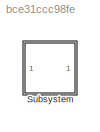
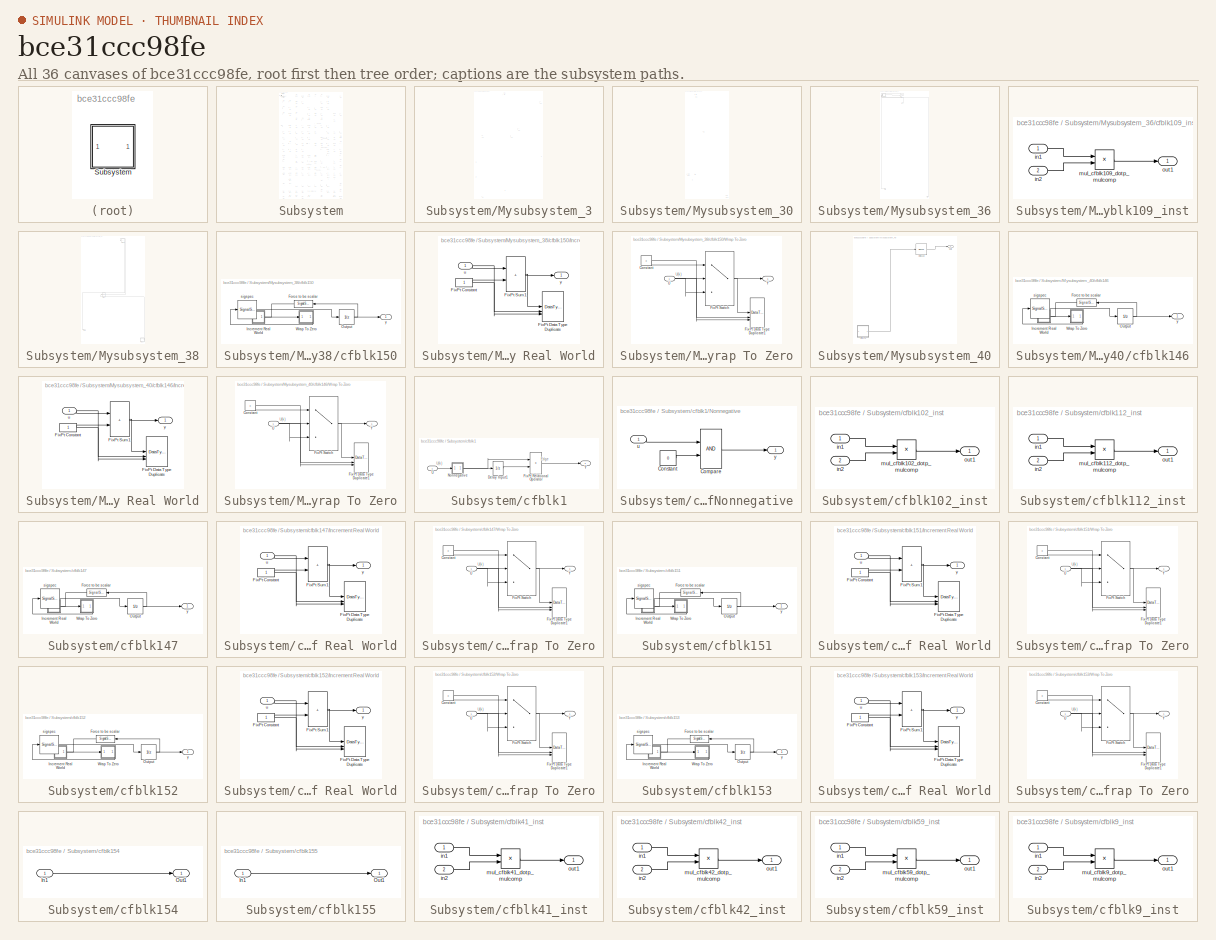
[diagram: thumbnail index - all 36 canvases of the model, root first then tree order]
MODEL slx_bce31ccc98fe
KIND model
CONFIG AbsTol = auto
CONFIG EnableMultiTasking = off
CONFIG FixedStep = auto
CONFIG MaxStep = auto
CONFIG MinStep = auto
CONFIG RelTol = 1e-3
CONFIG SampleTimeConstraint = Unconstrained
CONFIG SolverName = VariableStepAuto
CONFIG StartTime = 0.0
CONFIG StopTime = 10.0
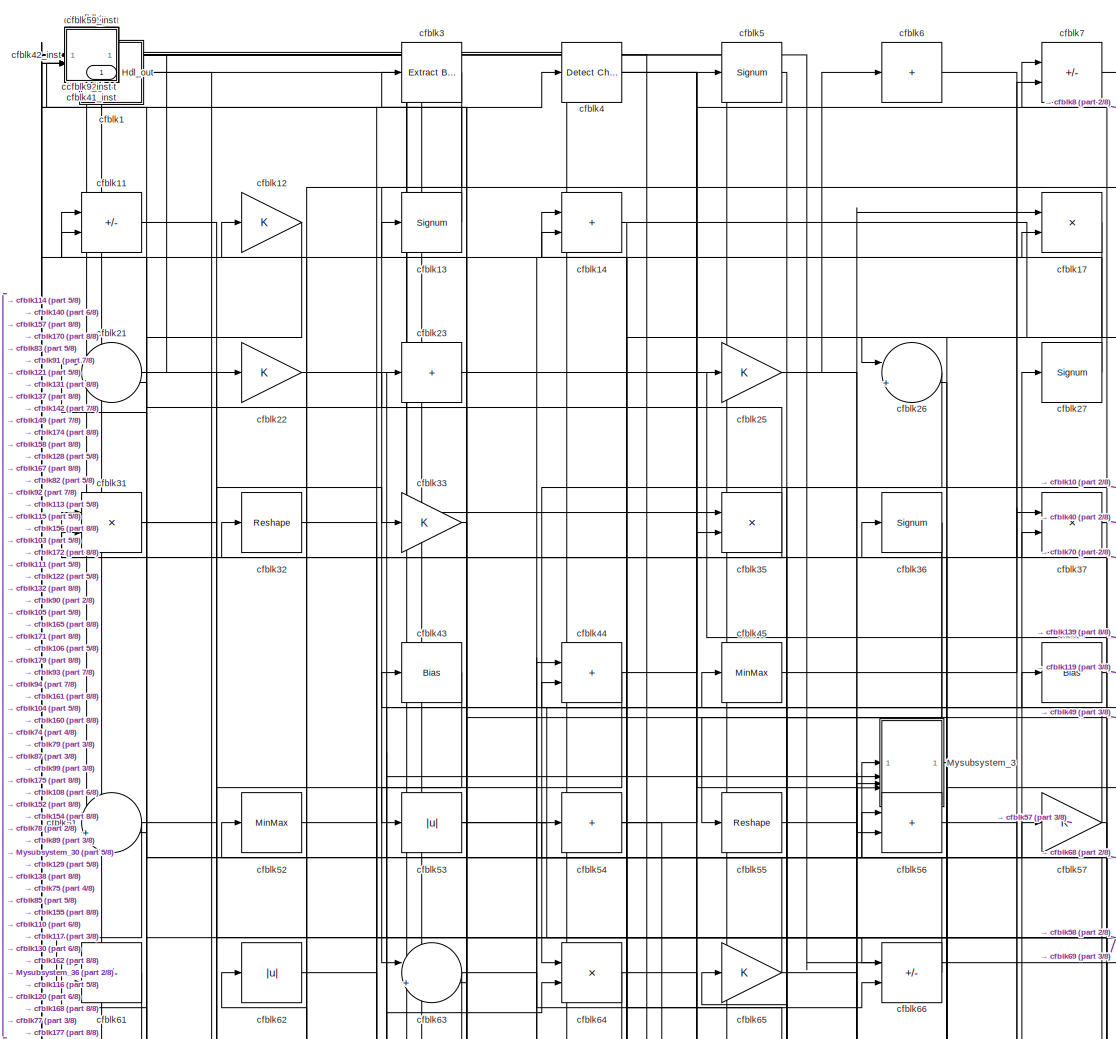
[diagram: Subsystem - part 1/8, top center region]
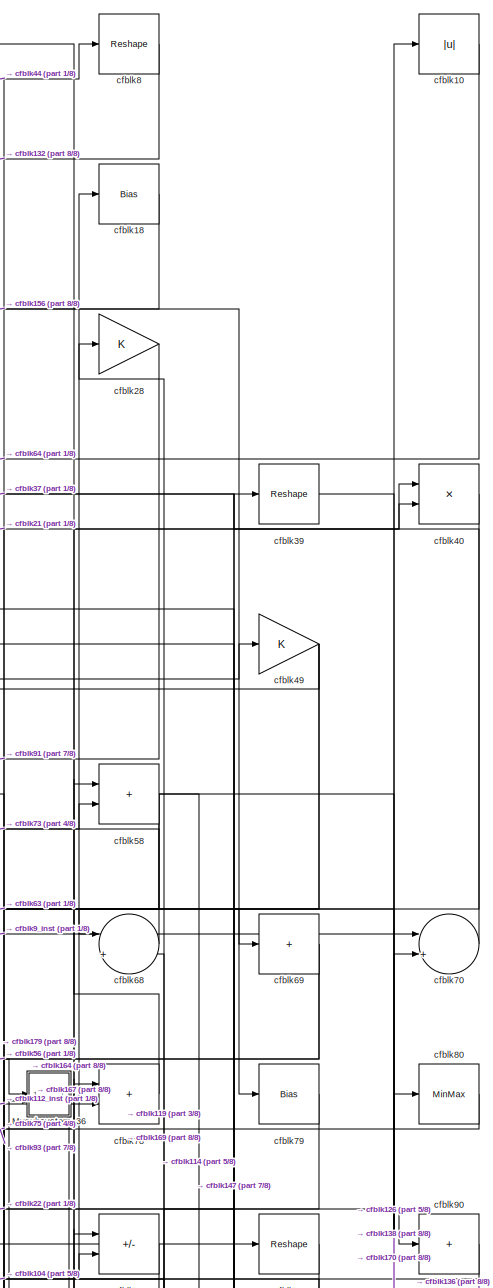
[diagram: Subsystem - part 2/8, top right region]
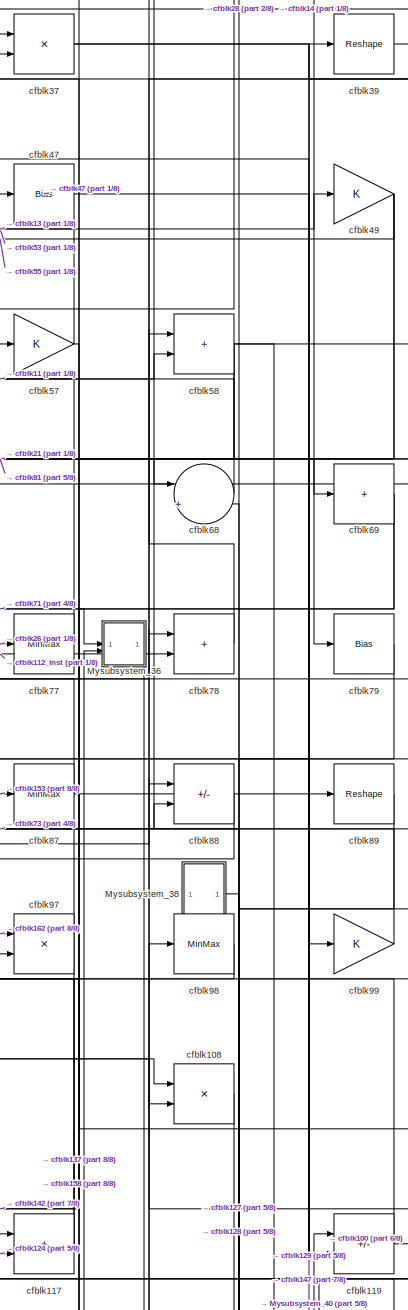
[diagram: Subsystem - part 3/8, middle right region]
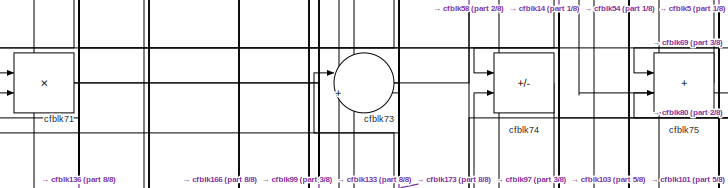
[diagram: Subsystem - part 4/8, middle left region]
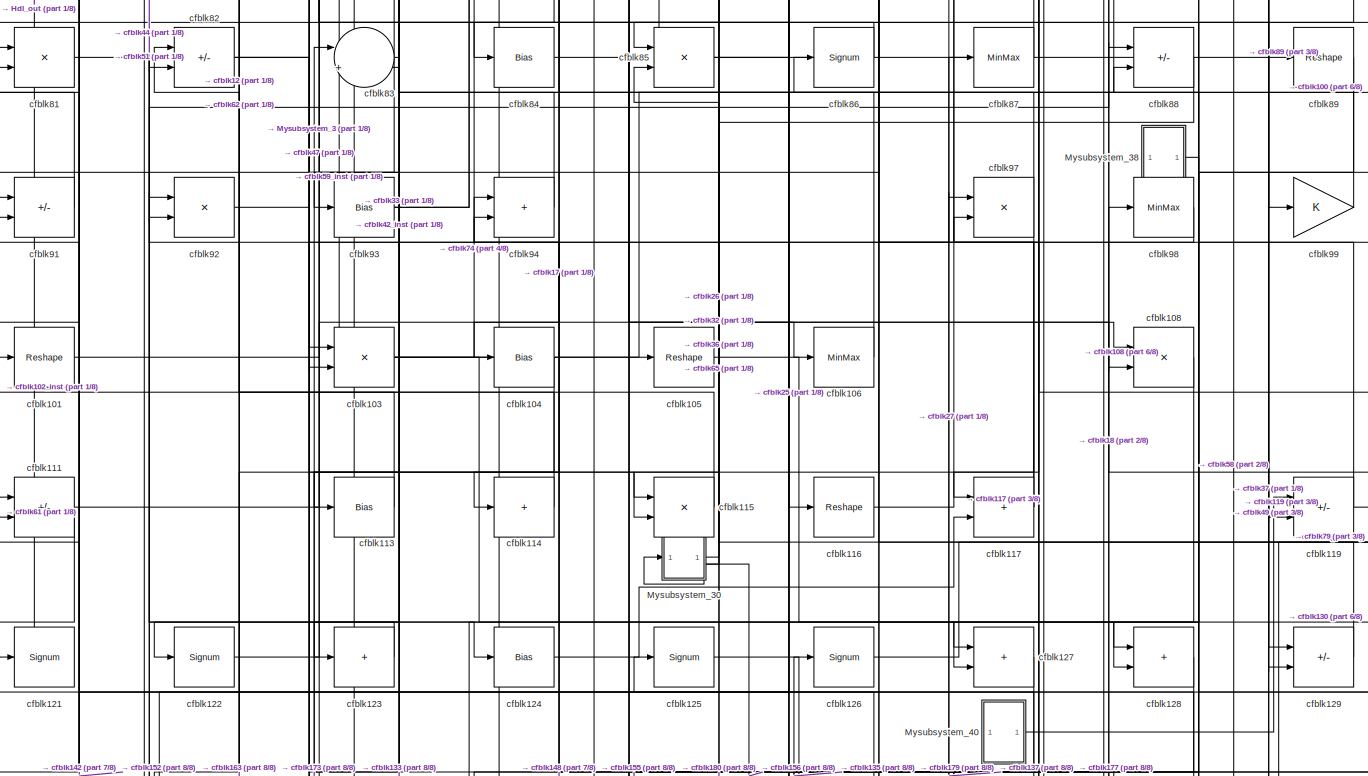
[diagram: Subsystem - part 5/8, full width, middle band]
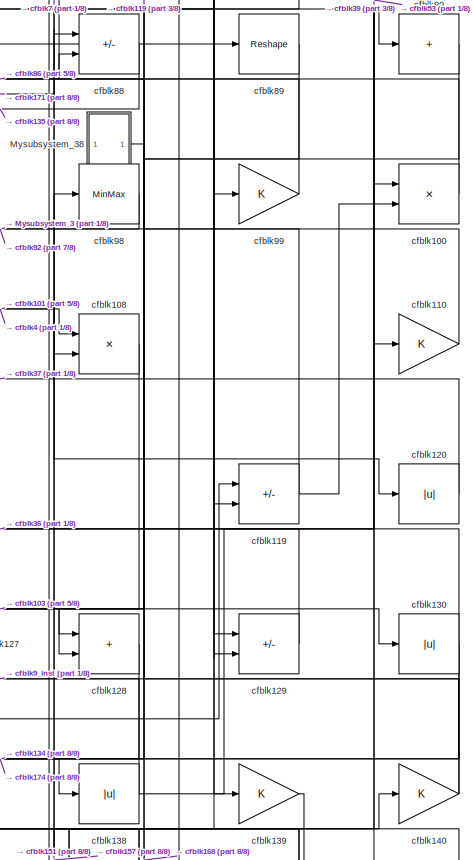
[diagram: Subsystem - part 6/8, middle right region]
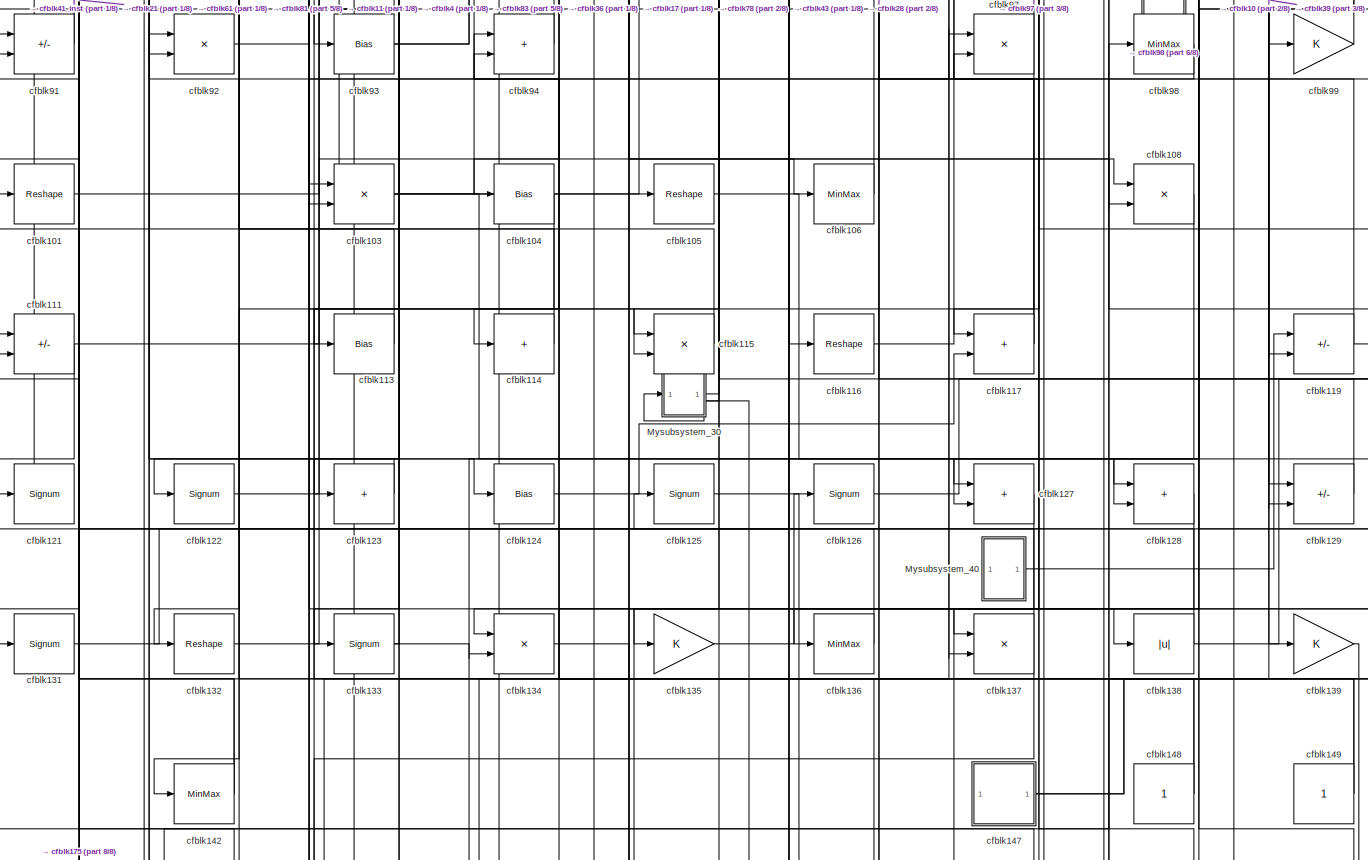
[diagram: Subsystem - part 7/8, full width, bottom band]
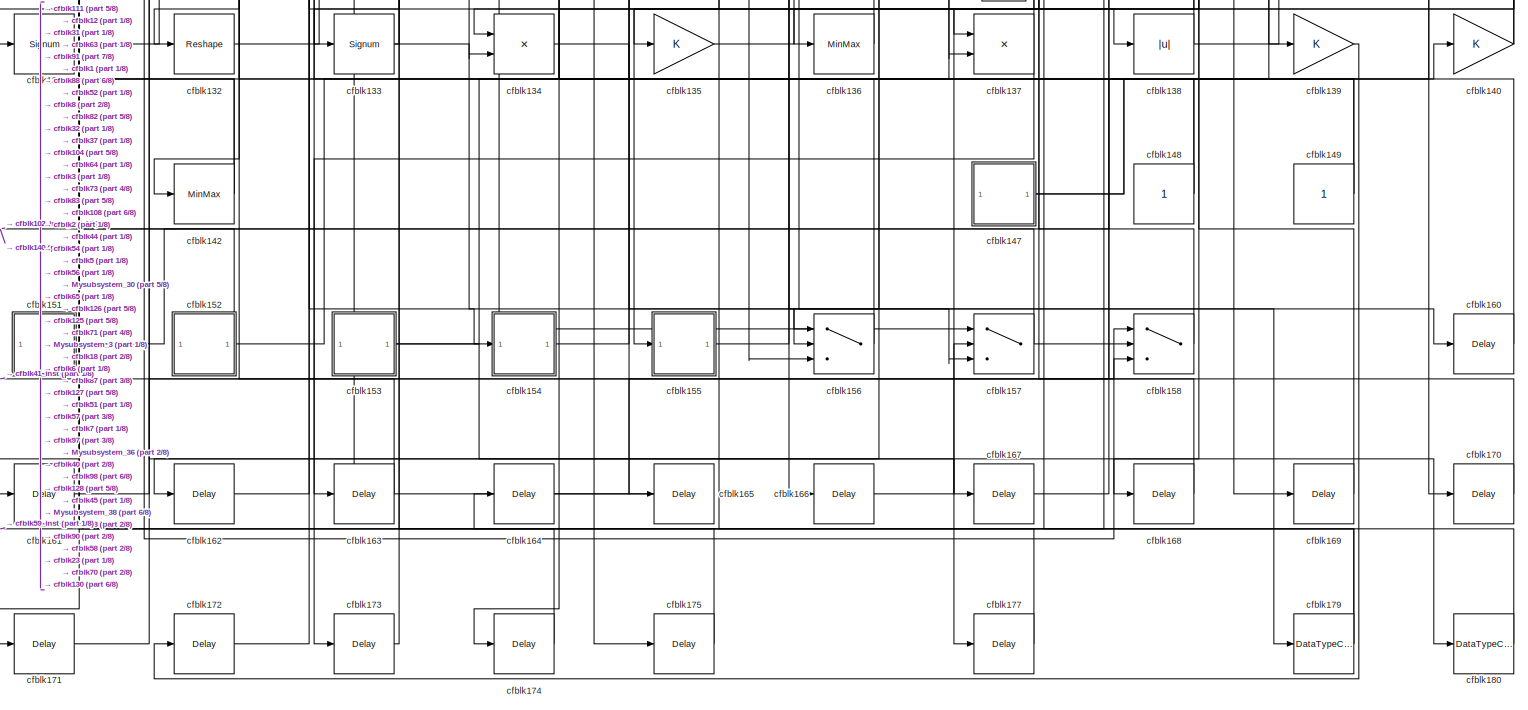
[diagram: Subsystem - part 8/8, full width, bottom band]
BLOCK [SubSystem] Subsystem
BLOCK [Outport] Subsystem/Hdl_out
  OutDataTypeStr = uint8
  SampleTime = 1
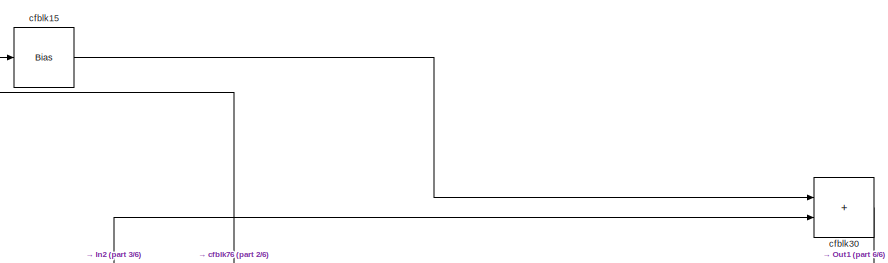
[diagram: Subsystem/Mysubsystem_3 - part 1/6, top right region]
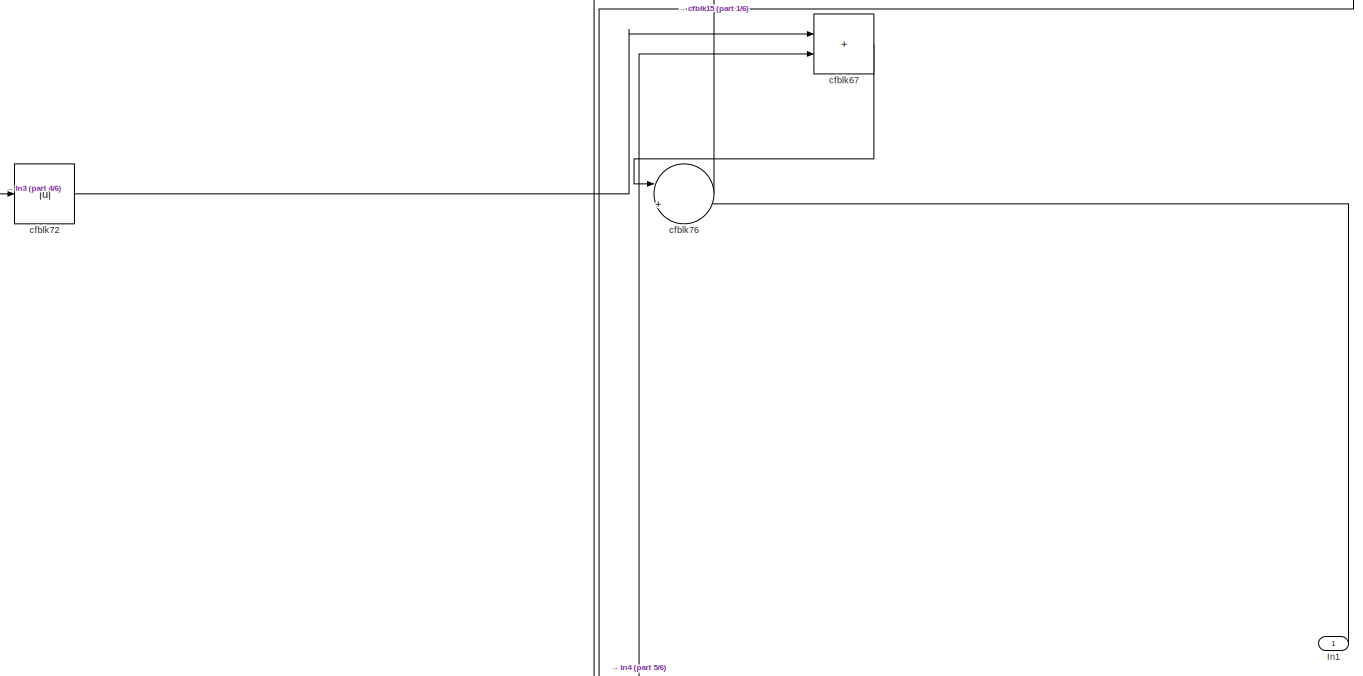
[diagram: Subsystem/Mysubsystem_3 - part 2/6, full width, middle band]
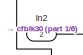
[diagram: Subsystem/Mysubsystem_3 - part 3/6, middle left region]
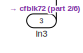
[diagram: Subsystem/Mysubsystem_3 - part 4/6, bottom left region]
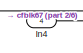
[diagram: Subsystem/Mysubsystem_3 - part 5/6, bottom center region]
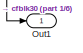
[diagram: Subsystem/Mysubsystem_3 - part 6/6, bottom left region]
BLOCK [SubSystem] Subsystem/Mysubsystem_3
BLOCK [Inport] Subsystem/Mysubsystem_3/In1
  OutDataTypeStr = uint8
  PortDimensions = 1
  SampleTime = 1
BLOCK [Inport] Subsystem/Mysubsystem_3/In2
  OutDataTypeStr = uint8
  Port = 2
  PortDimensions = 1
  SampleTime = 1
BLOCK [Inport] Subsystem/Mysubsystem_3/In3
  OutDataTypeStr = uint8
  Port = 3
  PortDimensions = 1
  SampleTime = 1
BLOCK [Inport] Subsystem/Mysubsystem_3/In4
  OutDataTypeStr = uint8
  Port = 4
  PortDimensions = 1
  SampleTime = 1
BLOCK [Outport] Subsystem/Mysubsystem_3/Out1
  SampleTime = 1
BLOCK [Bias] Subsystem/Mysubsystem_3/cfblk15
  Bias = 0.0
  SaturateOnIntegerOverflow = off
BLOCK [Sum] Subsystem/Mysubsystem_3/cfblk30
  IconShape = rectangular
BLOCK [Sum] Subsystem/Mysubsystem_3/cfblk67
  IconShape = rectangular
BLOCK [Abs] Subsystem/Mysubsystem_3/cfblk72
  SaturateOnIntegerOverflow = off
BLOCK [Sum] Subsystem/Mysubsystem_3/cfblk76
  Inputs = |++
BLOCK [SubSystem] Subsystem/Mysubsystem_30
BLOCK [Inport] Subsystem/Mysubsystem_30/In1
  OutDataTypeStr = uint8
  PortDimensions = 1
  SampleTime = 1
BLOCK [Outport] Subsystem/Mysubsystem_30/Out1
  SampleTime = 1
BLOCK [Outport] Subsystem/Mysubsystem_30/Out2
  Port = 2
  SampleTime = 1
BLOCK [Signum] Subsystem/Mysubsystem_30/cfblk143
BLOCK [Delay] Subsystem/Mysubsystem_30/cfblk178
  InputPortMap = u0
  SampleTime = 1
BLOCK [Bias] Subsystem/Mysubsystem_30/cfblk34
  Bias = 0.0
  SaturateOnIntegerOverflow = off
BLOCK [SubSystem] Subsystem/Mysubsystem_36
BLOCK [Inport] Subsystem/Mysubsystem_36/In1
  OutDataTypeStr = uint8
  PortDimensions = 1
  SampleTime = 1
BLOCK [Inport] Subsystem/Mysubsystem_36/In2
  OutDataTypeStr = uint8
  Port = 2
  PortDimensions = 1
  SampleTime = 1
BLOCK [Outport] Subsystem/Mysubsystem_36/Out1
  SampleTime = 1
BLOCK [SubSystem] Subsystem/Mysubsystem_36/cfblk109_inst
BLOCK [Inport] Subsystem/Mysubsystem_36/cfblk109_inst/in1
  OutDataTypeStr = uint8
  SampleTime = 1
BLOCK [Inport] Subsystem/Mysubsystem_36/cfblk109_inst/in2
  OutDataTypeStr = uint8
  Port = 2
  SampleTime = 1
BLOCK [Product] Subsystem/Mysubsystem_36/cfblk109_inst/mul_cfblk109_dotp_mulcomp
  Inputs = **
  OutDataTypeStr = uint16
  SampleTime = 1
BLOCK [Outport] Subsystem/Mysubsystem_36/cfblk109_inst/out1
  OutDataTypeStr = uint16
  SampleTime = 1
BLOCK [Gain] Subsystem/Mysubsystem_36/cfblk46
BLOCK [SubSystem] Subsystem/Mysubsystem_38
BLOCK [Outport] Subsystem/Mysubsystem_38/Out1
  SampleTime = 1
BLOCK [SubSystem] Subsystem/Mysubsystem_38/cfblk150
BLOCK [SignalSpecification] Subsystem/Mysubsystem_38/cfblk150/Force to be scalar
  Dimensions = 1
  DisableCoverage = on
BLOCK [SubSystem] Subsystem/Mysubsystem_38/cfblk150/Increment Real World
BLOCK [Constant] Subsystem/Mysubsystem_38/cfblk150/Increment Real World/FixPt Constant
  DisableCoverage = on
  OutDataTypeStr = Inherit: Inherit via back propagation
  SampleTime = -1
BLOCK [DataTypeDuplicate] Subsystem/Mysubsystem_38/cfblk150/Increment Real World/FixPt Data Type Duplicate
  DisableCoverage = on
  NumInputPorts = 3
BLOCK [Sum] Subsystem/Mysubsystem_38/cfblk150/Increment Real World/FixPt Sum1
  IconShape = rectangular
  InputSameDT = on
  LockScale = on
  OutDataTypeStr = Inherit: Inherit via back propagation
BLOCK [Inport] Subsystem/Mysubsystem_38/cfblk150/Increment Real World/u
  OutDataTypeStr = uint8
  SampleTime = 1
BLOCK [Outport] Subsystem/Mysubsystem_38/cfblk150/Increment Real World/y
  SampleTime = 1
BLOCK [UnitDelay] Subsystem/Mysubsystem_38/cfblk150/Output
  HasFrameUpgradeWarning = on
  InitialCondition = 0.0
  SampleTime = tsamp
BLOCK [SubSystem] Subsystem/Mysubsystem_38/cfblk150/Wrap To Zero
BLOCK [Constant] Subsystem/Mysubsystem_38/cfblk150/Wrap To Zero/Constant
  DisableCoverage = on
  OutDataTypeStr = Inherit: Inherit via back propagation
  SampleTime = -1
  Value = 0
BLOCK [DataTypeDuplicate] Subsystem/Mysubsystem_38/cfblk150/Wrap To Zero/FixPt Data Type Duplicate1
  DisableCoverage = on
  NumInputPorts = 3
BLOCK [Switch] Subsystem/Mysubsystem_38/cfblk150/Wrap To Zero/FixPt Switch
  Criteria = u2 > Threshold
  InputSameDT = off
  OutDataTypeStr = Inherit: Inherit via back propagation
  SaturateOnIntegerOverflow = off
  Threshold = Threshold
  ZeroCross = off
BLOCK [Inport] Subsystem/Mysubsystem_38/cfblk150/Wrap To Zero/U
  OutDataTypeStr = uint8
  SampleTime = 1
BLOCK [Outport] Subsystem/Mysubsystem_38/cfblk150/Wrap To Zero/Y
  SampleTime = 1
BLOCK [SignalSpecification] Subsystem/Mysubsystem_38/cfblk150/sigspec
  Dimensions = 1
  OutDataTypeStr = uint8
BLOCK [Outport] Subsystem/Mysubsystem_38/cfblk150/y
  SampleTime = 1
BLOCK [Sum] Subsystem/Mysubsystem_38/cfblk38
  IconShape = rectangular
  Inputs = +
BLOCK [Reshape] Subsystem/Mysubsystem_38/cfblk96
BLOCK [SubSystem] Subsystem/Mysubsystem_40
BLOCK [Outport] Subsystem/Mysubsystem_40/Out1
  SampleTime = 1
BLOCK [Signum] Subsystem/Mysubsystem_40/cfblk118
BLOCK [SubSystem] Subsystem/Mysubsystem_40/cfblk146
BLOCK [SignalSpecification] Subsystem/Mysubsystem_40/cfblk146/Force to be scalar
  Dimensions = 1
  DisableCoverage = on
BLOCK [SubSystem] Subsystem/Mysubsystem_40/cfblk146/Increment Real World
BLOCK [Constant] Subsystem/Mysubsystem_40/cfblk146/Increment Real World/FixPt Constant
  DisableCoverage = on
  OutDataTypeStr = Inherit: Inherit via back propagation
  SampleTime = -1
BLOCK [DataTypeDuplicate] Subsystem/Mysubsystem_40/cfblk146/Increment Real World/FixPt Data Type Duplicate
  DisableCoverage = on
  NumInputPorts = 3
BLOCK [Sum] Subsystem/Mysubsystem_40/cfblk146/Increment Real World/FixPt Sum1
  IconShape = rectangular
  InputSameDT = on
  LockScale = on
  OutDataTypeStr = Inherit: Inherit via back propagation
BLOCK [Inport] Subsystem/Mysubsystem_40/cfblk146/Increment Real World/u
  OutDataTypeStr = uint16
  SampleTime = 1
BLOCK [Outport] Subsystem/Mysubsystem_40/cfblk146/Increment Real World/y
  SampleTime = 1
BLOCK [UnitDelay] Subsystem/Mysubsystem_40/cfblk146/Output
  HasFrameUpgradeWarning = on
  InitialCondition = 0.0
  SampleTime = tsamp
BLOCK [SubSystem] Subsystem/Mysubsystem_40/cfblk146/Wrap To Zero
BLOCK [Constant] Subsystem/Mysubsystem_40/cfblk146/Wrap To Zero/Constant
  DisableCoverage = on
  OutDataTypeStr = Inherit: Inherit via back propagation
  SampleTime = -1
  Value = 0
BLOCK [DataTypeDuplicate] Subsystem/Mysubsystem_40/cfblk146/Wrap To Zero/FixPt Data Type Duplicate1
  DisableCoverage = on
  NumInputPorts = 3
BLOCK [Switch] Subsystem/Mysubsystem_40/cfblk146/Wrap To Zero/FixPt Switch
  Criteria = u2 > Threshold
  InputSameDT = off
  OutDataTypeStr = Inherit: Inherit via back propagation
  SaturateOnIntegerOverflow = off
  Threshold = Threshold
  ZeroCross = off
BLOCK [Inport] Subsystem/Mysubsystem_40/cfblk146/Wrap To Zero/U
  OutDataTypeStr = uint16
  SampleTime = 1
BLOCK [Outport] Subsystem/Mysubsystem_40/cfblk146/Wrap To Zero/Y
  SampleTime = 1
BLOCK [SignalSpecification] Subsystem/Mysubsystem_40/cfblk146/sigspec
  Dimensions = 1
  OutDataTypeStr = uint16
BLOCK [Outport] Subsystem/Mysubsystem_40/cfblk146/y
  SampleTime = 1
BLOCK [SubSystem] Subsystem/cfblk1
BLOCK [UnitDelay] Subsystem/cfblk1/Delay Input1
  Description = Store in Global RAM
  DisableCoverage = on
  HasFrameUpgradeWarning = on
  InitialCondition = vinit
  SampleTime = -1
BLOCK [RelationalOperator] Subsystem/cfblk1/FixPt Relational Operator
  InputSameDT = off
  Operator = >
  OutDataTypeStr = fixdt(0, 8)
  ZeroCross = off
BLOCK [SubSystem] Subsystem/cfblk1/Nonnegative
BLOCK [RelationalOperator] Subsystem/cfblk1/Nonnegative/Compare
  OutDataTypeStr = boolean
  ZeroCross = off
BLOCK [Constant] Subsystem/cfblk1/Nonnegative/Constant
  DisableCoverage = on
  OutDataTypeStr = Inherit: Inherit via back propagation
  PreserveConstantTs = on
  SampleTime = -1
  Value = 0
BLOCK [Inport] Subsystem/cfblk1/Nonnegative/u
  OutDataTypeStr = uint8
  SampleTime = 1
BLOCK [Outport] Subsystem/cfblk1/Nonnegative/y
  SampleTime = 1
BLOCK [Inport] Subsystem/cfblk1/U
  OutDataTypeStr = uint8
  SampleTime = 1
BLOCK [Outport] Subsystem/cfblk1/Y
  SampleTime = 1
BLOCK [Abs] Subsystem/cfblk10
  OutDataTypeStr = uint8
  SaturateOnIntegerOverflow = off
BLOCK [Product] Subsystem/cfblk100
  Inputs = */
  OutDataTypeStr = uint8
  RndMeth = Zero
  SaturateOnIntegerOverflow = on
BLOCK [Reshape] Subsystem/cfblk101
BLOCK [SubSystem] Subsystem/cfblk102_inst
BLOCK [Inport] Subsystem/cfblk102_inst/in1
  OutDataTypeStr = uint8
  SampleTime = 1
BLOCK [Inport] Subsystem/cfblk102_inst/in2
  OutDataTypeStr = uint8
  Port = 2
  SampleTime = 1
BLOCK [Product] Subsystem/cfblk102_inst/mul_cfblk102_dotp_mulcomp
  Inputs = **
  OutDataTypeStr = uint8
  SampleTime = 1
BLOCK [Outport] Subsystem/cfblk102_inst/out1
  OutDataTypeStr = uint8
  SampleTime = 1
BLOCK [Product] Subsystem/cfblk103
  Inputs = */
  OutDataTypeStr = uint8
  RndMeth = Zero
  SaturateOnIntegerOverflow = on
BLOCK [Bias] Subsystem/cfblk104
  Bias = 0.0
  SaturateOnIntegerOverflow = off
BLOCK [Reshape] Subsystem/cfblk105
BLOCK [MinMax] Subsystem/cfblk106
  OutDataTypeStr = uint8
BLOCK [Product] Subsystem/cfblk108
  Inputs = */
  OutDataTypeStr = uint8
  RndMeth = Zero
  SaturateOnIntegerOverflow = on
BLOCK [Sum] Subsystem/cfblk11
  IconShape = rectangular
  Inputs = +-
  OutDataTypeStr = uint8
BLOCK [Gain] Subsystem/cfblk110
  OutDataTypeStr = uint8
BLOCK [Sum] Subsystem/cfblk111
  IconShape = rectangular
  Inputs = +-
  OutDataTypeStr = uint8
BLOCK [SubSystem] Subsystem/cfblk112_inst
BLOCK [Inport] Subsystem/cfblk112_inst/in1
  OutDataTypeStr = uint8
  SampleTime = 1
BLOCK [Inport] Subsystem/cfblk112_inst/in2
  OutDataTypeStr = uint8
  Port = 2
  SampleTime = 1
BLOCK [Product] Subsystem/cfblk112_inst/mul_cfblk112_dotp_mulcomp
  Inputs = **
  OutDataTypeStr = uint8
  SampleTime = 1
BLOCK [Outport] Subsystem/cfblk112_inst/out1
  OutDataTypeStr = uint8
  SampleTime = 1
BLOCK [Bias] Subsystem/cfblk113
  Bias = 0.0
  SaturateOnIntegerOverflow = off
BLOCK [Sum] Subsystem/cfblk114
  IconShape = rectangular
  Inputs = +
  OutDataTypeStr = uint8
BLOCK [Product] Subsystem/cfblk115
  Inputs = */
  OutDataTypeStr = uint8
  RndMeth = Zero
  SaturateOnIntegerOverflow = on
BLOCK [Reshape] Subsystem/cfblk116
BLOCK [Sum] Subsystem/cfblk117
  IconShape = rectangular
  OutDataTypeStr = uint8
BLOCK [Sum] Subsystem/cfblk119
  IconShape = rectangular
  Inputs = +-
  OutDataTypeStr = uint8
BLOCK [Gain] Subsystem/cfblk12
  OutDataTypeStr = uint8
BLOCK [Abs] Subsystem/cfblk120
  OutDataTypeStr = uint8
  SaturateOnIntegerOverflow = off
BLOCK [Signum] Subsystem/cfblk121
BLOCK [Signum] Subsystem/cfblk122
BLOCK [Sum] Subsystem/cfblk123
  IconShape = rectangular
  Inputs = +
  OutDataTypeStr = uint8
BLOCK [Bias] Subsystem/cfblk124
  Bias = 0.0
  SaturateOnIntegerOverflow = off
BLOCK [Signum] Subsystem/cfblk125
BLOCK [Signum] Subsystem/cfblk126
BLOCK [Sum] Subsystem/cfblk127
  IconShape = rectangular
  OutDataTypeStr = uint8
BLOCK [Sum] Subsystem/cfblk128
  IconShape = rectangular
  OutDataTypeStr = uint8
BLOCK [Sum] Subsystem/cfblk129
  IconShape = rectangular
  Inputs = +-
  OutDataTypeStr = uint8
BLOCK [Signum] Subsystem/cfblk13
BLOCK [Abs] Subsystem/cfblk130
  OutDataTypeStr = uint8
  SaturateOnIntegerOverflow = off
BLOCK [Signum] Subsystem/cfblk131
BLOCK [Reshape] Subsystem/cfblk132
BLOCK [Signum] Subsystem/cfblk133
BLOCK [Product] Subsystem/cfblk134
  Inputs = */
  OutDataTypeStr = uint8
  RndMeth = Zero
  SaturateOnIntegerOverflow = on
BLOCK [Gain] Subsystem/cfblk135
  OutDataTypeStr = uint8
BLOCK [MinMax] Subsystem/cfblk136
  OutDataTypeStr = uint8
BLOCK [Product] Subsystem/cfblk137
  Inputs = */
  OutDataTypeStr = uint8
  RndMeth = Zero
  SaturateOnIntegerOverflow = on
BLOCK [Abs] Subsystem/cfblk138
  OutDataTypeStr = uint8
  SaturateOnIntegerOverflow = off
BLOCK [Gain] Subsystem/cfblk139
  OutDataTypeStr = uint8
BLOCK [Sum] Subsystem/cfblk14
  IconShape = rectangular
  OutDataTypeStr = uint8
BLOCK [Gain] Subsystem/cfblk140
  OutDataTypeStr = uint8
BLOCK [MinMax] Subsystem/cfblk142
  OutDataTypeStr = uint8
BLOCK [SubSystem] Subsystem/cfblk147
BLOCK [SignalSpecification] Subsystem/cfblk147/Force to be scalar
  Dimensions = 1
  DisableCoverage = on
BLOCK [SubSystem] Subsystem/cfblk147/Increment Real World
BLOCK [Constant] Subsystem/cfblk147/Increment Real World/FixPt Constant
  DisableCoverage = on
  OutDataTypeStr = Inherit: Inherit via back propagation
  SampleTime = -1
BLOCK [DataTypeDuplicate] Subsystem/cfblk147/Increment Real World/FixPt Data Type Duplicate
  DisableCoverage = on
  NumInputPorts = 3
BLOCK [Sum] Subsystem/cfblk147/Increment Real World/FixPt Sum1
  IconShape = rectangular
  InputSameDT = on
  LockScale = on
  OutDataTypeStr = Inherit: Inherit via back propagation
BLOCK [Inport] Subsystem/cfblk147/Increment Real World/u
  OutDataTypeStr = uint16
  SampleTime = 1
BLOCK [Outport] Subsystem/cfblk147/Increment Real World/y
  SampleTime = 1
BLOCK [UnitDelay] Subsystem/cfblk147/Output
  HasFrameUpgradeWarning = on
  InitialCondition = 0.0
  SampleTime = tsamp
BLOCK [SubSystem] Subsystem/cfblk147/Wrap To Zero
BLOCK [Constant] Subsystem/cfblk147/Wrap To Zero/Constant
  DisableCoverage = on
  OutDataTypeStr = Inherit: Inherit via back propagation
  SampleTime = -1
  Value = 0
BLOCK [DataTypeDuplicate] Subsystem/cfblk147/Wrap To Zero/FixPt Data Type Duplicate1
  DisableCoverage = on
  NumInputPorts = 3
BLOCK [Switch] Subsystem/cfblk147/Wrap To Zero/FixPt Switch
  Criteria = u2 > Threshold
  InputSameDT = off
  OutDataTypeStr = Inherit: Inherit via back propagation
  SaturateOnIntegerOverflow = off
  Threshold = Threshold
  ZeroCross = off
BLOCK [Inport] Subsystem/cfblk147/Wrap To Zero/U
  OutDataTypeStr = uint16
  SampleTime = 1
BLOCK [Outport] Subsystem/cfblk147/Wrap To Zero/Y
  SampleTime = 1
BLOCK [SignalSpecification] Subsystem/cfblk147/sigspec
  Dimensions = 1
  OutDataTypeStr = uint16
BLOCK [Outport] Subsystem/cfblk147/y
  SampleTime = 1
BLOCK [Constant] Subsystem/cfblk148
  OutDataTypeStr = uint8
  SampleTime = -1
BLOCK [Constant] Subsystem/cfblk149
  OutDataTypeStr = uint8
  SampleTime = -1
BLOCK [SubSystem] Subsystem/cfblk151
BLOCK [SignalSpecification] Subsystem/cfblk151/Force to be scalar
  Dimensions = 1
  DisableCoverage = on
BLOCK [SubSystem] Subsystem/cfblk151/Increment Real World
BLOCK [Constant] Subsystem/cfblk151/Increment Real World/FixPt Constant
  DisableCoverage = on
  OutDataTypeStr = Inherit: Inherit via back propagation
  SampleTime = -1
BLOCK [DataTypeDuplicate] Subsystem/cfblk151/Increment Real World/FixPt Data Type Duplicate
  DisableCoverage = on
  NumInputPorts = 3
BLOCK [Sum] Subsystem/cfblk151/Increment Real World/FixPt Sum1
  IconShape = rectangular
  InputSameDT = on
  LockScale = on
  OutDataTypeStr = Inherit: Inherit via back propagation
BLOCK [Inport] Subsystem/cfblk151/Increment Real World/u
  OutDataTypeStr = uint16
  SampleTime = 1
BLOCK [Outport] Subsystem/cfblk151/Increment Real World/y
  SampleTime = 1
BLOCK [UnitDelay] Subsystem/cfblk151/Output
  HasFrameUpgradeWarning = on
  InitialCondition = 0.0
  SampleTime = tsamp
BLOCK [SubSystem] Subsystem/cfblk151/Wrap To Zero
BLOCK [Constant] Subsystem/cfblk151/Wrap To Zero/Constant
  DisableCoverage = on
  OutDataTypeStr = Inherit: Inherit via back propagation
  SampleTime = -1
  Value = 0
BLOCK [DataTypeDuplicate] Subsystem/cfblk151/Wrap To Zero/FixPt Data Type Duplicate1
  DisableCoverage = on
  NumInputPorts = 3
BLOCK [Switch] Subsystem/cfblk151/Wrap To Zero/FixPt Switch
  Criteria = u2 > Threshold
  InputSameDT = off
  OutDataTypeStr = Inherit: Inherit via back propagation
  SaturateOnIntegerOverflow = off
  Threshold = Threshold
  ZeroCross = off
BLOCK [Inport] Subsystem/cfblk151/Wrap To Zero/U
  OutDataTypeStr = uint16
  SampleTime = 1
BLOCK [Outport] Subsystem/cfblk151/Wrap To Zero/Y
  SampleTime = 1
BLOCK [SignalSpecification] Subsystem/cfblk151/sigspec
  Dimensions = 1
  OutDataTypeStr = uint16
BLOCK [Outport] Subsystem/cfblk151/y
  SampleTime = 1
BLOCK [SubSystem] Subsystem/cfblk152
BLOCK [SignalSpecification] Subsystem/cfblk152/Force to be scalar
  Dimensions = 1
  DisableCoverage = on
BLOCK [SubSystem] Subsystem/cfblk152/Increment Real World
BLOCK [Constant] Subsystem/cfblk152/Increment Real World/FixPt Constant
  DisableCoverage = on
  OutDataTypeStr = Inherit: Inherit via back propagation
  SampleTime = -1
BLOCK [DataTypeDuplicate] Subsystem/cfblk152/Increment Real World/FixPt Data Type Duplicate
  DisableCoverage = on
  NumInputPorts = 3
BLOCK [Sum] Subsystem/cfblk152/Increment Real World/FixPt Sum1
  IconShape = rectangular
  InputSameDT = on
  LockScale = on
  OutDataTypeStr = Inherit: Inherit via back propagation
BLOCK [Inport] Subsystem/cfblk152/Increment Real World/u
  OutDataTypeStr = uint8
  SampleTime = 1
BLOCK [Outport] Subsystem/cfblk152/Increment Real World/y
  SampleTime = 1
BLOCK [UnitDelay] Subsystem/cfblk152/Output
  HasFrameUpgradeWarning = on
  InitialCondition = 0.0
  SampleTime = tsamp
BLOCK [SubSystem] Subsystem/cfblk152/Wrap To Zero
BLOCK [Constant] Subsystem/cfblk152/Wrap To Zero/Constant
  DisableCoverage = on
  OutDataTypeStr = Inherit: Inherit via back propagation
  SampleTime = -1
  Value = 0
BLOCK [DataTypeDuplicate] Subsystem/cfblk152/Wrap To Zero/FixPt Data Type Duplicate1
  DisableCoverage = on
  NumInputPorts = 3
BLOCK [Switch] Subsystem/cfblk152/Wrap To Zero/FixPt Switch
  Criteria = u2 > Threshold
  InputSameDT = off
  OutDataTypeStr = Inherit: Inherit via back propagation
  SaturateOnIntegerOverflow = off
  Threshold = Threshold
  ZeroCross = off
BLOCK [Inport] Subsystem/cfblk152/Wrap To Zero/U
  OutDataTypeStr = uint8
  SampleTime = 1
BLOCK [Outport] Subsystem/cfblk152/Wrap To Zero/Y
  SampleTime = 1
BLOCK [SignalSpecification] Subsystem/cfblk152/sigspec
  Dimensions = 1
  OutDataTypeStr = uint8
BLOCK [Outport] Subsystem/cfblk152/y
  SampleTime = 1
BLOCK [SubSystem] Subsystem/cfblk153
BLOCK [SignalSpecification] Subsystem/cfblk153/Force to be scalar
  Dimensions = 1
  DisableCoverage = on
BLOCK [SubSystem] Subsystem/cfblk153/Increment Real World
BLOCK [Constant] Subsystem/cfblk153/Increment Real World/FixPt Constant
  DisableCoverage = on
  OutDataTypeStr = Inherit: Inherit via back propagation
  SampleTime = -1
BLOCK [DataTypeDuplicate] Subsystem/cfblk153/Increment Real World/FixPt Data Type Duplicate
  DisableCoverage = on
  NumInputPorts = 3
BLOCK [Sum] Subsystem/cfblk153/Increment Real World/FixPt Sum1
  IconShape = rectangular
  InputSameDT = on
  LockScale = on
  OutDataTypeStr = Inherit: Inherit via back propagation
BLOCK [Inport] Subsystem/cfblk153/Increment Real World/u
  OutDataTypeStr = uint8
  SampleTime = 1
BLOCK [Outport] Subsystem/cfblk153/Increment Real World/y
  SampleTime = 1
BLOCK [UnitDelay] Subsystem/cfblk153/Output
  HasFrameUpgradeWarning = on
  InitialCondition = 0.0
  SampleTime = tsamp
BLOCK [SubSystem] Subsystem/cfblk153/Wrap To Zero
BLOCK [Constant] Subsystem/cfblk153/Wrap To Zero/Constant
  DisableCoverage = on
  OutDataTypeStr = Inherit: Inherit via back propagation
  SampleTime = -1
  Value = 0
BLOCK [DataTypeDuplicate] Subsystem/cfblk153/Wrap To Zero/FixPt Data Type Duplicate1
  DisableCoverage = on
  NumInputPorts = 3
BLOCK [Switch] Subsystem/cfblk153/Wrap To Zero/FixPt Switch
  Criteria = u2 > Threshold
  InputSameDT = off
  OutDataTypeStr = Inherit: Inherit via back propagation
  SaturateOnIntegerOverflow = off
  Threshold = Threshold
  ZeroCross = off
BLOCK [Inport] Subsystem/cfblk153/Wrap To Zero/U
  OutDataTypeStr = uint8
  SampleTime = 1
BLOCK [Outport] Subsystem/cfblk153/Wrap To Zero/Y
  SampleTime = 1
BLOCK [SignalSpecification] Subsystem/cfblk153/sigspec
  Dimensions = 1
  OutDataTypeStr = uint8
BLOCK [Outport] Subsystem/cfblk153/y
  SampleTime = 1
BLOCK [SubSystem] Subsystem/cfblk154
BLOCK [Inport] Subsystem/cfblk154/In1
  OutDataTypeStr = uint8
  PortDimensions = 1
  SampleTime = 1
BLOCK [Outport] Subsystem/cfblk154/Out1
  SampleTime = 1
BLOCK [SubSystem] Subsystem/cfblk155
BLOCK [Inport] Subsystem/cfblk155/In1
  OutDataTypeStr = uint8
  PortDimensions = 1
  SampleTime = 1
BLOCK [Outport] Subsystem/cfblk155/Out1
  SampleTime = 1
BLOCK [Switch] Subsystem/cfblk156
  InputSameDT = off
  OutDataTypeStr = uint8
  SaturateOnIntegerOverflow = off
BLOCK [Switch] Subsystem/cfblk157
  InputSameDT = off
  OutDataTypeStr = uint8
  SaturateOnIntegerOverflow = off
BLOCK [Switch] Subsystem/cfblk158
  InputSameDT = off
  OutDataTypeStr = uint8
  SaturateOnIntegerOverflow = off
BLOCK [Delay] Subsystem/cfblk160
  InputPortMap = u0
  SampleTime = 1
BLOCK [Delay] Subsystem/cfblk161
  InputPortMap = u0
  SampleTime = 1
BLOCK [Delay] Subsystem/cfblk162
  InputPortMap = u0
  SampleTime = 1
BLOCK [Delay] Subsystem/cfblk163
  InputPortMap = u0
  SampleTime = 1
BLOCK [Delay] Subsystem/cfblk164
  InputPortMap = u0
  SampleTime = 1
BLOCK [Delay] Subsystem/cfblk165
  InputPortMap = u0
  SampleTime = 1
BLOCK [Delay] Subsystem/cfblk166
  InputPortMap = u0
  SampleTime = 1
BLOCK [Delay] Subsystem/cfblk167
  InputPortMap = u0
  SampleTime = 1
BLOCK [Delay] Subsystem/cfblk168
  InputPortMap = u0
  SampleTime = 1
BLOCK [Delay] Subsystem/cfblk169
  InputPortMap = u0
  SampleTime = 1
BLOCK [Product] Subsystem/cfblk17
  Inputs = */
  OutDataTypeStr = uint8
  RndMeth = Zero
  SaturateOnIntegerOverflow = on
BLOCK [Delay] Subsystem/cfblk170
  InputPortMap = u0
  SampleTime = 1
BLOCK [Delay] Subsystem/cfblk171
  InputPortMap = u0
  SampleTime = 1
BLOCK [Delay] Subsystem/cfblk172
  InputPortMap = u0
  SampleTime = 1
BLOCK [Delay] Subsystem/cfblk173
  InputPortMap = u0
  SampleTime = 1
BLOCK [Delay] Subsystem/cfblk174
  InputPortMap = u0
  SampleTime = 1
BLOCK [Delay] Subsystem/cfblk175
  InputPortMap = u0
  SampleTime = 1
BLOCK [Delay] Subsystem/cfblk177
  InputPortMap = u0
  SampleTime = 1
BLOCK [DataTypeConversion] Subsystem/cfblk179
  OutDataTypeStr = uint8
  RndMeth = Floor
  SaturateOnIntegerOverflow = off
BLOCK [Bias] Subsystem/cfblk18
  Bias = 0.0
  SaturateOnIntegerOverflow = off
BLOCK [DataTypeConversion] Subsystem/cfblk180
  OutDataTypeStr = uint8
  RndMeth = Floor
  SaturateOnIntegerOverflow = off
BLOCK [Constant] Subsystem/cfblk2
  OutDataTypeStr = uint8
  SampleTime = 1
  Value = 0
BLOCK [Sum] Subsystem/cfblk21
  Inputs = |++
  OutDataTypeStr = uint8
BLOCK [Gain] Subsystem/cfblk22
  OutDataTypeStr = uint8
BLOCK [Sum] Subsystem/cfblk23
  IconShape = rectangular
  Inputs = +
  OutDataTypeStr = uint8
BLOCK [Gain] Subsystem/cfblk25
  OutDataTypeStr = uint8
BLOCK [Sum] Subsystem/cfblk26
  Inputs = |++
  OutDataTypeStr = uint8
BLOCK [Signum] Subsystem/cfblk27
BLOCK [Gain] Subsystem/cfblk28
  OutDataTypeStr = uint8
BLOCK [Reference] Subsystem/cfblk3  REF=simulink/Logic and Bit
Operations/Extract Bits
  LibrarySourceBlock = hdlsllib/Logic and Bit\nOperations/Extract Bits
  SourceBlock = simulink/Logic and Bit\nOperations/Extract Bits
  SourceType = Extract Bits
BLOCK [Product] Subsystem/cfblk31
  Inputs = */
  OutDataTypeStr = uint8
  RndMeth = Zero
  SaturateOnIntegerOverflow = on
BLOCK [Reshape] Subsystem/cfblk32
BLOCK [Gain] Subsystem/cfblk33
  OutDataTypeStr = uint8
BLOCK [Product] Subsystem/cfblk35
  Inputs = */
  OutDataTypeStr = uint8
  RndMeth = Zero
  SaturateOnIntegerOverflow = on
BLOCK [Signum] Subsystem/cfblk36
BLOCK [Product] Subsystem/cfblk37
  Inputs = */
  OutDataTypeStr = uint8
  RndMeth = Zero
  SaturateOnIntegerOverflow = on
BLOCK [Reshape] Subsystem/cfblk39
BLOCK [Reference] Subsystem/cfblk4  REF=simulink/Logic and Bit
Operations/Detect
Change
  LibrarySourceBlock = hdlsllib/Logic and Bit\nOperations/Detect\nChange
  SourceBlock = simulink/Logic and Bit\nOperations/Detect\nChange
  SourceType = Detect Change
BLOCK [Product] Subsystem/cfblk40
  Inputs = */
  OutDataTypeStr = uint8
  RndMeth = Zero
  SaturateOnIntegerOverflow = on
BLOCK [SubSystem] Subsystem/cfblk41_inst
BLOCK [Inport] Subsystem/cfblk41_inst/in1
  OutDataTypeStr = uint8
  SampleTime = 1
BLOCK [Inport] Subsystem/cfblk41_inst/in2
  OutDataTypeStr = uint8
  Port = 2
  SampleTime = 1
BLOCK [Product] Subsystem/cfblk41_inst/mul_cfblk41_dotp_mulcomp
  Inputs = **
  OutDataTypeStr = uint8
  SampleTime = 1
BLOCK [Outport] Subsystem/cfblk41_inst/out1
  OutDataTypeStr = uint8
  SampleTime = 1
BLOCK [SubSystem] Subsystem/cfblk42_inst
BLOCK [Inport] Subsystem/cfblk42_inst/in1
  OutDataTypeStr = uint8
  SampleTime = 1
BLOCK [Inport] Subsystem/cfblk42_inst/in2
  OutDataTypeStr = uint8
  Port = 2
  SampleTime = 1
BLOCK [Product] Subsystem/cfblk42_inst/mul_cfblk42_dotp_mulcomp
  Inputs = **
  OutDataTypeStr = uint8
  SampleTime = 1
BLOCK [Outport] Subsystem/cfblk42_inst/out1
  OutDataTypeStr = uint8
  SampleTime = 1
BLOCK [Bias] Subsystem/cfblk43
  Bias = 0.0
  SaturateOnIntegerOverflow = off
BLOCK [Sum] Subsystem/cfblk44
  IconShape = rectangular
  OutDataTypeStr = uint8
BLOCK [MinMax] Subsystem/cfblk45
  OutDataTypeStr = uint8
BLOCK [Bias] Subsystem/cfblk47
  Bias = 0.0
  SaturateOnIntegerOverflow = off
BLOCK [Gain] Subsystem/cfblk49
  OutDataTypeStr = uint8
BLOCK [Signum] Subsystem/cfblk5
BLOCK [Sum] Subsystem/cfblk51
  Inputs = |++
  OutDataTypeStr = uint8
BLOCK [MinMax] Subsystem/cfblk52
  OutDataTypeStr = uint8
BLOCK [Abs] Subsystem/cfblk53
  OutDataTypeStr = uint8
  SaturateOnIntegerOverflow = off
BLOCK [Sum] Subsystem/cfblk54
  IconShape = rectangular
  Inputs = +
  OutDataTypeStr = uint8
BLOCK [Reshape] Subsystem/cfblk55
BLOCK [Sum] Subsystem/cfblk56
  IconShape = rectangular
  OutDataTypeStr = uint8
BLOCK [Gain] Subsystem/cfblk57
  OutDataTypeStr = uint8
BLOCK [Sum] Subsystem/cfblk58
  IconShape = rectangular
  OutDataTypeStr = uint8
BLOCK [SubSystem] Subsystem/cfblk59_inst
BLOCK [Inport] Subsystem/cfblk59_inst/in1
  OutDataTypeStr = uint8
  SampleTime = 1
BLOCK [Inport] Subsystem/cfblk59_inst/in2
  OutDataTypeStr = uint8
  Port = 2
  SampleTime = 1
BLOCK [Product] Subsystem/cfblk59_inst/mul_cfblk59_dotp_mulcomp
  Inputs = **
  OutDataTypeStr = uint8
  SampleTime = 1
BLOCK [Outport] Subsystem/cfblk59_inst/out1
  OutDataTypeStr = uint8
  SampleTime = 1
BLOCK [Sum] Subsystem/cfblk6
  IconShape = rectangular
  Inputs = +
  OutDataTypeStr = uint8
BLOCK [Sum] Subsystem/cfblk61
  IconShape = rectangular
  Inputs = +-
  OutDataTypeStr = uint8
BLOCK [Abs] Subsystem/cfblk62
  OutDataTypeStr = uint8
  SaturateOnIntegerOverflow = off
BLOCK [Sum] Subsystem/cfblk63
  Inputs = |++
  OutDataTypeStr = uint8
BLOCK [Product] Subsystem/cfblk64
  Inputs = */
  OutDataTypeStr = uint8
  RndMeth = Zero
  SaturateOnIntegerOverflow = on
BLOCK [Gain] Subsystem/cfblk65
  OutDataTypeStr = uint8
BLOCK [Sum] Subsystem/cfblk66
  IconShape = rectangular
  Inputs = +-
  OutDataTypeStr = uint8
BLOCK [Sum] Subsystem/cfblk68
  Inputs = |++
  OutDataTypeStr = uint8
BLOCK [Sum] Subsystem/cfblk69
  IconShape = rectangular
  Inputs = +
  OutDataTypeStr = uint8
BLOCK [Sum] Subsystem/cfblk7
  IconShape = rectangular
  Inputs = +-
  OutDataTypeStr = uint8
BLOCK [Sum] Subsystem/cfblk70
  Inputs = |++
  OutDataTypeStr = uint8
BLOCK [Product] Subsystem/cfblk71
  Inputs = */
  OutDataTypeStr = uint8
  RndMeth = Zero
  SaturateOnIntegerOverflow = on
BLOCK [Sum] Subsystem/cfblk73
  Inputs = |++
  OutDataTypeStr = uint8
BLOCK [Sum] Subsystem/cfblk74
  IconShape = rectangular
  Inputs = +-
  OutDataTypeStr = uint8
BLOCK [Sum] Subsystem/cfblk75
  IconShape = rectangular
  OutDataTypeStr = uint8
BLOCK [MinMax] Subsystem/cfblk77
  OutDataTypeStr = uint8
BLOCK [Sum] Subsystem/cfblk78
  IconShape = rectangular
  OutDataTypeStr = uint8
BLOCK [Bias] Subsystem/cfblk79
  Bias = 0.0
  SaturateOnIntegerOverflow = off
BLOCK [Reshape] Subsystem/cfblk8
BLOCK [MinMax] Subsystem/cfblk80
  OutDataTypeStr = uint8
BLOCK [Product] Subsystem/cfblk81
  Inputs = */
  OutDataTypeStr = uint8
  RndMeth = Zero
  SaturateOnIntegerOverflow = on
BLOCK [Sum] Subsystem/cfblk82
  IconShape = rectangular
  Inputs = +-
  OutDataTypeStr = uint8
BLOCK [Sum] Subsystem/cfblk83
  Inputs = |++
  OutDataTypeStr = uint8
BLOCK [Bias] Subsystem/cfblk84
  Bias = 0.0
  SaturateOnIntegerOverflow = off
BLOCK [Product] Subsystem/cfblk85
  Inputs = */
  OutDataTypeStr = uint8
  RndMeth = Zero
  SaturateOnIntegerOverflow = on
BLOCK [Signum] Subsystem/cfblk86
BLOCK [MinMax] Subsystem/cfblk87
  OutDataTypeStr = uint8
BLOCK [Sum] Subsystem/cfblk88
  IconShape = rectangular
  Inputs = +-
  OutDataTypeStr = uint8
BLOCK [Reshape] Subsystem/cfblk89
BLOCK [Sum] Subsystem/cfblk90
  IconShape = rectangular
  Inputs = +
  OutDataTypeStr = uint8
BLOCK [Sum] Subsystem/cfblk91
  IconShape = rectangular
  Inputs = +-
  OutDataTypeStr = uint8
BLOCK [Product] Subsystem/cfblk92
  Inputs = */
  OutDataTypeStr = uint8
  RndMeth = Zero
  SaturateOnIntegerOverflow = on
BLOCK [Bias] Subsystem/cfblk93
  Bias = 0.0
  SaturateOnIntegerOverflow = off
BLOCK [Sum] Subsystem/cfblk94
  IconShape = rectangular
  OutDataTypeStr = uint8
BLOCK [Product] Subsystem/cfblk97
  Inputs = */
  OutDataTypeStr = uint8
  RndMeth = Zero
  SaturateOnIntegerOverflow = on
BLOCK [MinMax] Subsystem/cfblk98
  OutDataTypeStr = uint8
BLOCK [Gain] Subsystem/cfblk99
  OutDataTypeStr = uint8
BLOCK [SubSystem] Subsystem/cfblk9_inst
BLOCK [Inport] Subsystem/cfblk9_inst/in1
  OutDataTypeStr = uint8
  SampleTime = 1
BLOCK [Inport] Subsystem/cfblk9_inst/in2
  OutDataTypeStr = uint8
  Port = 2
  SampleTime = 1
BLOCK [Product] Subsystem/cfblk9_inst/mul_cfblk9_dotp_mulcomp
  Inputs = **
  OutDataTypeStr = uint8
  SampleTime = 1
BLOCK [Outport] Subsystem/cfblk9_inst/out1
  OutDataTypeStr = uint8
  SampleTime = 1
ANNOTATION Subsystem/Mysubsystem_38/cfblk150/Wrap To Zero: U(k)
ANNOTATION Subsystem/Mysubsystem_40/cfblk146/Wrap To Zero: U(k)
ANNOTATION Subsystem/cfblk1: Edge
ANNOTATION Subsystem/cfblk1: U(k)
ANNOTATION Subsystem/cfblk147/Wrap To Zero: U(k)
ANNOTATION Subsystem/cfblk151/Wrap To Zero: U(k)
ANNOTATION Subsystem/cfblk152/Wrap To Zero: U(k)
ANNOTATION Subsystem/cfblk153/Wrap To Zero: U(k)
LINE Subsystem/Mysubsystem_3/In1:1 -> Subsystem/Mysubsystem_3/cfblk76:2
LINE Subsystem/Mysubsystem_3/In2:1 -> Subsystem/Mysubsystem_3/cfblk30:2
LINE Subsystem/Mysubsystem_3/In3:1 -> Subsystem/Mysubsystem_3/cfblk72:1
LINE Subsystem/Mysubsystem_3/In4:1 -> Subsystem/Mysubsystem_3/cfblk67:2
LINE Subsystem/Mysubsystem_3/cfblk15:1 -> Subsystem/Mysubsystem_3/cfblk30:1
LINE Subsystem/Mysubsystem_3/cfblk30:1 -> Subsystem/Mysubsystem_3/Out1:1
LINE Subsystem/Mysubsystem_3/cfblk67:1 -> Subsystem/Mysubsystem_3/cfblk76:1
LINE Subsystem/Mysubsystem_3/cfblk72:1 -> Subsystem/Mysubsystem_3/cfblk67:1
LINE Subsystem/Mysubsystem_3/cfblk76:1 -> Subsystem/Mysubsystem_3/cfblk15:1
LINE Subsystem/Mysubsystem_30/In1:1 -> Subsystem/Mysubsystem_30/cfblk178:1
LINE Subsystem/Mysubsystem_30/cfblk143:1 -> Subsystem/Mysubsystem_30/Out2:1
LINE Subsystem/Mysubsystem_30/cfblk178:1 -> Subsystem/Mysubsystem_30/cfblk34:1
NET Subsystem/Mysubsystem_30/cfblk34:1 -> Subsystem/Mysubsystem_30/Out1:1, Subsystem/Mysubsystem_30/cfblk143:1
LINE Subsystem/Mysubsystem_30:1 -> Subsystem/cfblk85:2
NET Subsystem/Mysubsystem_30:2 -> Subsystem/Mysubsystem_30:1, Subsystem/cfblk156:3, Subsystem/cfblk65:1
LINE Subsystem/Mysubsystem_36/In1:1 -> Subsystem/Mysubsystem_36/cfblk109_inst:1
LINE Subsystem/Mysubsystem_36/In2:1 -> Subsystem/Mysubsystem_36/cfblk109_inst:2
LINE Subsystem/Mysubsystem_36/cfblk109_inst/in1:1 -> Subsystem/Mysubsystem_36/cfblk109_inst/mul_cfblk109_dotp_mulcomp:1
LINE Subsystem/Mysubsystem_36/cfblk109_inst/in2:1 -> Subsystem/Mysubsystem_36/cfblk109_inst/mul_cfblk109_dotp_mulcomp:2
LINE Subsystem/Mysubsystem_36/cfblk109_inst/mul_cfblk109_dotp_mulcomp:1 -> Subsystem/Mysubsystem_36/cfblk109_inst/out1:1
LINE Subsystem/Mysubsystem_36/cfblk109_inst:1 -> Subsystem/Mysubsystem_36/cfblk46:1
LINE Subsystem/Mysubsystem_36/cfblk46:1 -> Subsystem/Mysubsystem_36/Out1:1
LINE Subsystem/Mysubsystem_36:1 -> Subsystem/cfblk164:1
LINE Subsystem/Mysubsystem_38/cfblk150:1 -> Subsystem/Mysubsystem_38/cfblk96:1
LINE Subsystem/Mysubsystem_38/cfblk38:1 -> Subsystem/Mysubsystem_38/Out1:1
LINE Subsystem/Mysubsystem_38/cfblk96:1 -> Subsystem/Mysubsystem_38/cfblk38:1
LINE Subsystem/Mysubsystem_38:1 -> Subsystem/cfblk134:1
LINE Subsystem/Mysubsystem_3:1 -> Subsystem/cfblk162:1
LINE Subsystem/Mysubsystem_40/cfblk118:1 -> Subsystem/Mysubsystem_40/Out1:1
LINE Subsystem/Mysubsystem_40/cfblk146:1 -> Subsystem/Mysubsystem_40/cfblk118:1
LINE Subsystem/Mysubsystem_40:1 -> Subsystem/cfblk119:1
LINE Subsystem/cfblk100:1 -> Subsystem/cfblk86:1
LINE Subsystem/cfblk101:1 -> Subsystem/cfblk108:1
LINE Subsystem/cfblk102_inst/in1:1 -> Subsystem/cfblk102_inst/mul_cfblk102_dotp_mulcomp:1
LINE Subsystem/cfblk102_inst/in2:1 -> Subsystem/cfblk102_inst/mul_cfblk102_dotp_mulcomp:2
LINE Subsystem/cfblk102_inst/mul_cfblk102_dotp_mulcomp:1 -> Subsystem/cfblk102_inst/out1:1
LINE Subsystem/cfblk102_inst:1 -> Subsystem/cfblk22:1
NET Subsystem/cfblk103:1 -> Subsystem/cfblk130:1, Subsystem/cfblk74:2
NET Subsystem/cfblk104:1 -> Subsystem/cfblk173:1, Subsystem/cfblk18:1
LINE Subsystem/cfblk105:1 -> Subsystem/cfblk127:2
LINE Subsystem/cfblk106:1 -> Subsystem/cfblk42_inst:2
LINE Subsystem/cfblk108:1 -> Subsystem/cfblk134:2
LINE Subsystem/cfblk10:1 -> Subsystem/cfblk64:1
LINE Subsystem/cfblk110:1 -> Subsystem/Mysubsystem_3:1
NET Subsystem/cfblk111:1 -> Subsystem/Mysubsystem_3:2, Subsystem/cfblk121:1
LINE Subsystem/cfblk112_inst/in1:1 -> Subsystem/cfblk112_inst/mul_cfblk112_dotp_mulcomp:1
LINE Subsystem/cfblk112_inst/in2:1 -> Subsystem/cfblk112_inst/mul_cfblk112_dotp_mulcomp:2
LINE Subsystem/cfblk112_inst/mul_cfblk112_dotp_mulcomp:1 -> Subsystem/cfblk112_inst/out1:1
NET Subsystem/cfblk112_inst:1 -> Subsystem/cfblk78:2, Subsystem/cfblk89:1, Subsystem/cfblk9_inst:2
LINE Subsystem/cfblk113:1 -> Subsystem/cfblk62:1
LINE Subsystem/cfblk114:1 -> Subsystem/cfblk102_inst:1
LINE Subsystem/cfblk115:1 -> Subsystem/cfblk12:1
LINE Subsystem/cfblk116:1 -> Subsystem/cfblk27:1
NET Subsystem/cfblk117:1 -> Subsystem/cfblk26:2, Subsystem/cfblk77:1
NET Subsystem/cfblk119:1 -> Subsystem/cfblk100:2, Subsystem/cfblk28:1
LINE Subsystem/cfblk11:1 -> Subsystem/cfblk92:2
LINE Subsystem/cfblk120:1 -> Subsystem/cfblk37:2
LINE Subsystem/cfblk121:1 -> Subsystem/Hdl_out:1
LINE Subsystem/cfblk122:1 -> Subsystem/cfblk47:1
LINE Subsystem/cfblk123:1 -> Subsystem/cfblk122:1
LINE Subsystem/cfblk124:1 -> Subsystem/cfblk117:2
LINE Subsystem/cfblk125:1 -> Subsystem/cfblk179:1
LINE Subsystem/cfblk126:1 -> Subsystem/cfblk80:1
LINE Subsystem/cfblk127:1 -> Subsystem/cfblk177:1
LINE Subsystem/cfblk128:1 -> Subsystem/cfblk155:1
LINE Subsystem/cfblk129:1 -> Subsystem/cfblk32:1
LINE Subsystem/cfblk12:1 -> Subsystem/cfblk131:1
NET Subsystem/cfblk130:1 -> Subsystem/cfblk168:1, Subsystem/cfblk174:1, Subsystem/cfblk36:1
LINE Subsystem/cfblk131:1 -> Subsystem/Mysubsystem_3:3
LINE Subsystem/cfblk132:1 -> Subsystem/cfblk64:2
NET Subsystem/cfblk133:1 -> Subsystem/cfblk156:2, Subsystem/cfblk83:2
LINE Subsystem/cfblk134:1 -> Subsystem/cfblk165:1
LINE Subsystem/cfblk135:1 -> Subsystem/cfblk126:1
LINE Subsystem/cfblk136:1 -> Subsystem/cfblk71:1
NET Subsystem/cfblk137:1 -> Subsystem/cfblk163:1, Subsystem/cfblk51:2
NET Subsystem/cfblk138:1 -> Subsystem/cfblk45:1, Subsystem/cfblk70:2
LINE Subsystem/cfblk139:1 -> Subsystem/cfblk172:1
LINE Subsystem/cfblk13:1 -> Subsystem/cfblk112_inst:2
NET Subsystem/cfblk140:1 -> Subsystem/cfblk88:2, Subsystem/cfblk9_inst:1
NET Subsystem/cfblk142:1 -> Subsystem/cfblk21:1, Subsystem/cfblk81:2
NET Subsystem/cfblk147:1 -> Subsystem/cfblk10:1, Subsystem/cfblk39:1
NET Subsystem/cfblk148:1 -> Subsystem/cfblk83:1, Subsystem/cfblk94:1
NET Subsystem/cfblk149:1 -> Subsystem/cfblk61:1, Subsystem/cfblk94:2
NET Subsystem/cfblk14:1 -> Subsystem/cfblk74:1, Subsystem/cfblk79:1
LINE Subsystem/cfblk151:1 -> Subsystem/cfblk98:1
NET Subsystem/cfblk152:1 -> Subsystem/cfblk111:1, Subsystem/cfblk5:1
NET Subsystem/cfblk153:1 -> Subsystem/cfblk180:1, Subsystem/cfblk87:1
LINE Subsystem/cfblk154/In1:1 -> Subsystem/cfblk154/Out1:1
LINE Subsystem/cfblk154:1 -> Subsystem/cfblk56:1
LINE Subsystem/cfblk155/In1:1 -> Subsystem/cfblk155/Out1:1
LINE Subsystem/cfblk155:1 -> Subsystem/Mysubsystem_3:4
LINE Subsystem/cfblk156:1 -> Subsystem/cfblk52:1
NET Subsystem/cfblk157:1 -> Subsystem/cfblk102_inst:2, Subsystem/cfblk140:1
LINE Subsystem/cfblk158:1 -> Subsystem/cfblk97:2
LINE Subsystem/cfblk160:1 -> Subsystem/cfblk44:2
LINE Subsystem/cfblk161:1 -> Subsystem/cfblk158:3
LINE Subsystem/cfblk162:1 -> Subsystem/cfblk97:1
LINE Subsystem/cfblk163:1 -> Subsystem/cfblk82:1
LINE Subsystem/cfblk164:1 -> Subsystem/cfblk158:2
LINE Subsystem/cfblk165:1 -> Subsystem/cfblk1:1
LINE Subsystem/cfblk166:1 -> Subsystem/cfblk157:2
LINE Subsystem/cfblk167:1 -> Subsystem/cfblk40:1
LINE Subsystem/cfblk168:1 -> Subsystem/cfblk7:1
LINE Subsystem/cfblk169:1 -> Subsystem/cfblk68:2
LINE Subsystem/cfblk170:1 -> Subsystem/cfblk41_inst:2
LINE Subsystem/cfblk171:1 -> Subsystem/cfblk88:1
LINE Subsystem/cfblk172:1 -> Subsystem/cfblk37:1
LINE Subsystem/cfblk173:1 -> Subsystem/cfblk73:2
LINE Subsystem/cfblk174:1 -> Subsystem/cfblk31:1
LINE Subsystem/cfblk175:1 -> Subsystem/cfblk91:2
LINE Subsystem/cfblk177:1 -> Subsystem/cfblk59_inst:1
NET Subsystem/cfblk179:1 -> Subsystem/Mysubsystem_36:2, Subsystem/cfblk3:1
LINE Subsystem/cfblk17:1 -> Subsystem/cfblk104:1
LINE Subsystem/cfblk180:1 -> Subsystem/cfblk125:1
LINE Subsystem/cfblk18:1 -> Subsystem/cfblk156:1
LINE Subsystem/cfblk1:1 -> Subsystem/cfblk158:1
LINE Subsystem/cfblk21:1 -> Subsystem/cfblk69:1
LINE Subsystem/cfblk22:1 -> Subsystem/cfblk90:1
LINE Subsystem/cfblk23:1 -> Subsystem/cfblk139:1
NET Subsystem/cfblk25:1 -> Subsystem/cfblk116:1, Subsystem/cfblk6:1
LINE Subsystem/cfblk26:1 -> Subsystem/cfblk115:2
LINE Subsystem/cfblk27:1 -> Subsystem/cfblk42_inst:1
LINE Subsystem/cfblk28:1 -> Subsystem/cfblk91:1
LINE Subsystem/cfblk2:1 -> Subsystem/cfblk157:1
NET Subsystem/cfblk31:1 -> Subsystem/cfblk167:1, Subsystem/cfblk33:1
LINE Subsystem/cfblk32:1 -> Subsystem/cfblk154:1
LINE Subsystem/cfblk33:1 -> Subsystem/cfblk113:1
NET Subsystem/cfblk35:1 -> Subsystem/cfblk11:1, Subsystem/cfblk31:2
NET Subsystem/cfblk36:1 -> Subsystem/cfblk85:1, Subsystem/cfblk93:1
NET Subsystem/cfblk37:1 -> Subsystem/cfblk129:1, Subsystem/cfblk40:2
LINE Subsystem/cfblk39:1 -> Subsystem/cfblk100:1
LINE Subsystem/cfblk3:1 -> Subsystem/cfblk63:1
LINE Subsystem/cfblk40:1 -> Subsystem/cfblk68:1
LINE Subsystem/cfblk41_inst/in1:1 -> Subsystem/cfblk41_inst/mul_cfblk41_dotp_mulcomp:1
LINE Subsystem/cfblk41_inst/in2:1 -> Subsystem/cfblk41_inst/mul_cfblk41_dotp_mulcomp:2
LINE Subsystem/cfblk41_inst/mul_cfblk41_dotp_mulcomp:1 -> Subsystem/cfblk41_inst/out1:1
LINE Subsystem/cfblk41_inst:1 -> Subsystem/cfblk25:1
LINE Subsystem/cfblk42_inst/in1:1 -> Subsystem/cfblk42_inst/mul_cfblk42_dotp_mulcomp:1
LINE Subsystem/cfblk42_inst/in2:1 -> Subsystem/cfblk42_inst/mul_cfblk42_dotp_mulcomp:2
LINE Subsystem/cfblk42_inst/mul_cfblk42_dotp_mulcomp:1 -> Subsystem/cfblk42_inst/out1:1
LINE Subsystem/cfblk42_inst:1 -> Subsystem/cfblk35:1
LINE Subsystem/cfblk43:1 -> Subsystem/cfblk53:1
NET Subsystem/cfblk44:1 -> Subsystem/cfblk82:2, Subsystem/cfblk8:1
LINE Subsystem/cfblk45:1 -> Subsystem/cfblk7:2
LINE Subsystem/cfblk47:1 -> Subsystem/cfblk119:2
NET Subsystem/cfblk49:1 -> Subsystem/cfblk129:2, Subsystem/cfblk55:1, Subsystem/cfblk81:1
NET Subsystem/cfblk4:1 -> Subsystem/cfblk108:2, Subsystem/cfblk26:1, Subsystem/cfblk56:2
NET Subsystem/cfblk51:1 -> Subsystem/cfblk128:2, Subsystem/cfblk61:2
LINE Subsystem/cfblk52:1 -> Subsystem/cfblk66:1
NET Subsystem/cfblk53:1 -> Subsystem/cfblk110:1, Subsystem/cfblk49:1
NET Subsystem/cfblk54:1 -> Subsystem/cfblk175:1, Subsystem/cfblk35:2
LINE Subsystem/cfblk55:1 -> Subsystem/cfblk57:1
LINE Subsystem/cfblk56:1 -> Subsystem/Mysubsystem_36:1
NET Subsystem/cfblk57:1 -> Subsystem/cfblk137:1, Subsystem/cfblk13:1
NET Subsystem/cfblk58:1 -> Subsystem/cfblk114:1, Subsystem/cfblk169:1, Subsystem/cfblk170:1, Subsystem/cfblk63:2
LINE Subsystem/cfblk59_inst/in1:1 -> Subsystem/cfblk59_inst/mul_cfblk59_dotp_mulcomp:1
LINE Subsystem/cfblk59_inst/in2:1 -> Subsystem/cfblk59_inst/mul_cfblk59_dotp_mulcomp:2
LINE Subsystem/cfblk59_inst/mul_cfblk59_dotp_mulcomp:1 -> Subsystem/cfblk59_inst/out1:1
NET Subsystem/cfblk59_inst:1 -> Subsystem/cfblk105:1, Subsystem/cfblk51:1
LINE Subsystem/cfblk5:1 -> Subsystem/cfblk75:1
LINE Subsystem/cfblk61:1 -> Subsystem/cfblk111:2
LINE Subsystem/cfblk62:1 -> Subsystem/cfblk103:1
NET Subsystem/cfblk63:1 -> Subsystem/cfblk171:1, Subsystem/cfblk66:2
NET Subsystem/cfblk64:1 -> Subsystem/cfblk160:1, Subsystem/cfblk161:1
NET Subsystem/cfblk65:1 -> Subsystem/cfblk112_inst:1, Subsystem/cfblk157:3
LINE Subsystem/cfblk66:1 -> Subsystem/cfblk23:1
LINE Subsystem/cfblk68:1 -> Subsystem/cfblk44:1
NET Subsystem/cfblk69:1 -> Subsystem/cfblk117:1, Subsystem/cfblk71:2
LINE Subsystem/cfblk6:1 -> Subsystem/cfblk138:1
LINE Subsystem/cfblk70:1 -> Subsystem/cfblk21:2
NET Subsystem/cfblk71:1 -> Subsystem/cfblk166:1, Subsystem/cfblk99:1
NET Subsystem/cfblk73:1 -> Subsystem/cfblk133:1, Subsystem/cfblk58:2
LINE Subsystem/cfblk74:1 -> Subsystem/cfblk101:1
LINE Subsystem/cfblk75:1 -> Subsystem/cfblk54:1
LINE Subsystem/cfblk77:1 -> Subsystem/cfblk11:2
LINE Subsystem/cfblk78:1 -> Subsystem/cfblk58:1
LINE Subsystem/cfblk79:1 -> Subsystem/cfblk128:1
LINE Subsystem/cfblk7:1 -> Subsystem/cfblk120:1
LINE Subsystem/cfblk80:1 -> Subsystem/cfblk75:2
LINE Subsystem/cfblk81:1 -> Subsystem/cfblk124:1
NET Subsystem/cfblk82:1 -> Subsystem/cfblk115:1, Subsystem/cfblk137:2
NET Subsystem/cfblk83:1 -> Subsystem/cfblk103:2, Subsystem/cfblk123:1, Subsystem/cfblk59_inst:2
LINE Subsystem/cfblk84:1 -> Subsystem/cfblk106:1
LINE Subsystem/cfblk85:1 -> Subsystem/cfblk17:1
LINE Subsystem/cfblk86:1 -> Subsystem/cfblk84:1
LINE Subsystem/cfblk87:1 -> Subsystem/cfblk14:1
LINE Subsystem/cfblk88:1 -> Subsystem/cfblk135:1
LINE Subsystem/cfblk89:1 -> Subsystem/cfblk127:1
LINE Subsystem/cfblk8:1 -> Subsystem/cfblk132:1
LINE Subsystem/cfblk90:1 -> Subsystem/cfblk136:1
LINE Subsystem/cfblk91:1 -> Subsystem/cfblk41_inst:1
LINE Subsystem/cfblk92:1 -> Subsystem/cfblk4:1
NET Subsystem/cfblk93:1 -> Subsystem/cfblk17:2, Subsystem/cfblk78:1
LINE Subsystem/cfblk94:1 -> Subsystem/cfblk43:1
NET Subsystem/cfblk97:1 -> Subsystem/cfblk142:1, Subsystem/cfblk73:1
LINE Subsystem/cfblk98:1 -> Subsystem/cfblk92:1
LINE Subsystem/cfblk99:1 -> Subsystem/cfblk14:2
LINE Subsystem/cfblk9_inst/in1:1 -> Subsystem/cfblk9_inst/mul_cfblk9_dotp_mulcomp:1
LINE Subsystem/cfblk9_inst/in2:1 -> Subsystem/cfblk9_inst/mul_cfblk9_dotp_mulcomp:2
LINE Subsystem/cfblk9_inst/mul_cfblk9_dotp_mulcomp:1 -> Subsystem/cfblk9_inst/out1:1
LINE Subsystem/cfblk9_inst:1 -> Subsystem/cfblk70:1
note: NET lines group one-source signal fan-out (src -> all destinations, sorted); 1:1 wires keep LINE
